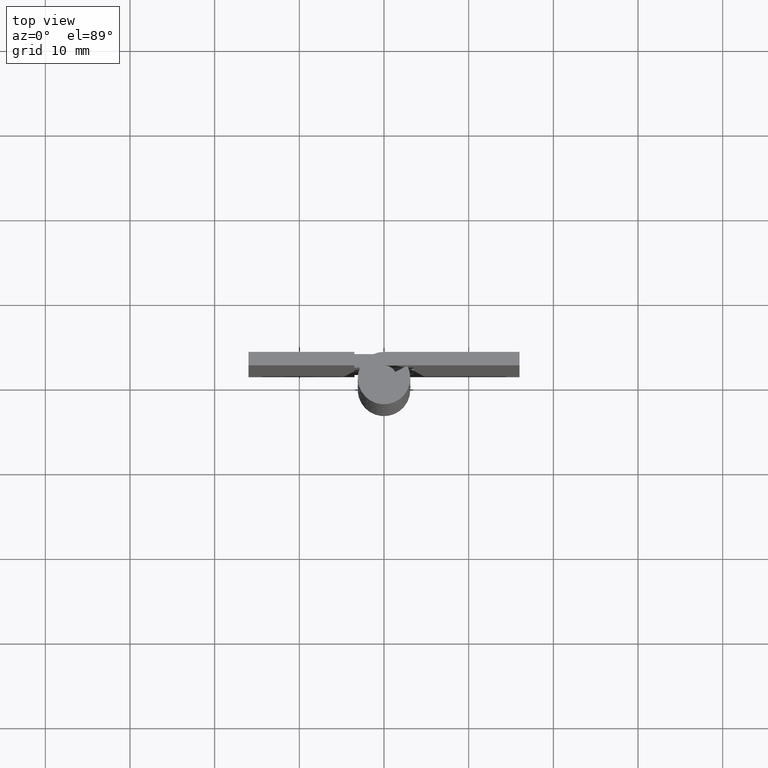
[diagram: clean part render]
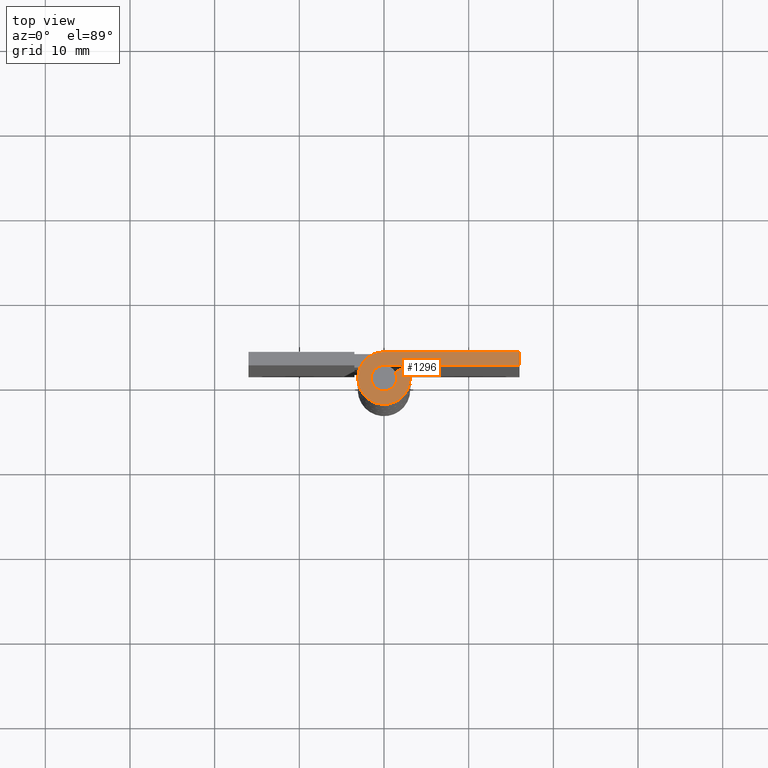
[diagram: same view with one face highlighted and labeled with its STEP entity id]
A machine part, top view. The second image highlights one B-rep face of the part: STEP entity #1296.
In plain terms, the highlighted face is a freeform B-spline surface patch.
Its self-contained STEP definition (entity closure, byte-faithful):
#1219=CARTESIAN_POINT('',(-4.053816169899054,-3.408860445423791,80.0));
#1220=CARTESIAN_POINT('',(16.954034590744921,-3.408860445423791,80.0));
#1221=CARTESIAN_POINT('',(-4.053816169899054,3.409648594709115,80.0));
#1222=CARTESIAN_POINT('',(16.954034590744921,3.409648594709115,80.0));
#1223=B_SPLINE_SURFACE_WITH_KNOTS('',1,1,((#1219,#1221),(#1220,#1222)),.UNSPECIFIED.,.F.,.F.,.U.,(2,2),(2,2),(0.0,21.007850760643979),(0.0,6.818509040132906),.UNSPECIFIED.);
#1224=CARTESIAN_POINT('',(2.739981751764050,1.450000000000000,80.0));
#1225=VERTEX_POINT('',#1224);
#1226=CARTESIAN_POINT('',(0.003521362805220,3.099998000000000,80.0));
#1227=VERTEX_POINT('',#1226);
#1228=CARTESIAN_POINT('',(2.739981751764050,1.450000000000002,80.0));
#1229=CARTESIAN_POINT('',(3.842352259281344,-0.633086258124314,80.0));
#1230=CARTESIAN_POINT('',(2.129955333572986,-2.252396562993291,80.0));
#1231=CARTESIAN_POINT('',(0.417558407864627,-3.871706867862268,80.0));
#1232=CARTESIAN_POINT('',(-1.600726611546711,-2.654745621540072,80.0));
#1233=CARTESIAN_POINT('',(-3.619011630958046,-1.437784375217877,80.0));
#1234=CARTESIAN_POINT('',(-2.986140433580759,0.832445380150624,80.0));
#1235=CARTESIAN_POINT('',(-2.353269236203469,3.102675135519129,80.0));
#1236=CARTESIAN_POINT('',(0.003521362805217,3.099997999999999,80.0));
#1244=(BOUNDED_CURVE()B_SPLINE_CURVE(2,(#1228,#1229,#1230,#1231,#1232,#1233,#1234,#1235,#1236),.UNSPECIFIED.,.F.,.U.)B_SPLINE_CURVE_WITH_KNOTS((3,2,2,2,3),(0.0,0.250000000000000,0.500000000000000,0.750000000000000,1.0),.UNSPECIFIED.)CURVE()GEOMETRIC_REPRESENTATION_ITEM()RATIONAL_B_SPLINE_CURVE((1.0,0.796064190964140,1.0,0.796064190964140,1.0,0.796064190964140,1.0,0.796064190964140,1.0))REPRESENTATION_ITEM(''));
#1245=EDGE_CURVE('',#1225,#1227,#1244,.T.);
#1246=ORIENTED_EDGE('',*,*,#1245,.F.);
#1247=CARTESIAN_POINT('',(1.325797621821316,0.701612903225806,80.0));
#1248=VERTEX_POINT('',#1247);
#1249=CARTESIAN_POINT('',(1.325797621821316,0.701612903225806,80.0));
#1250=CARTESIAN_POINT('',(2.739981751764050,1.450000000000000,80.0));
#1251=QUASI_UNIFORM_CURVE('',1,(#1249,#1250),.UNSPECIFIED.,.F.,.U.);
#1252=EDGE_CURVE('',#1248,#1225,#1251,.T.);
#1253=ORIENTED_EDGE('',*,*,#1252,.F.);
#1254=CARTESIAN_POINT('',(0.0,1.500000000000000,80.0));
#1255=VERTEX_POINT('',#1254);
#1256=CARTESIAN_POINT('',(1.325797621821315,0.701612903225806,80.0));
#1257=CARTESIAN_POINT('',(1.859045520162959,-0.306035035134632,79.999999999999986));
#1258=CARTESIAN_POINT('',(1.030933009042893,-1.089576583295441,80.0));
#1259=CARTESIAN_POINT('',(0.202820497922826,-1.873118131456252,79.999999999999986));
#1260=CARTESIAN_POINT('',(-0.773815431857395,-1.284994037892532,80.0));
#1261=CARTESIAN_POINT('',(-1.750451361637613,-0.696869944328814,79.999999999999986));
#1262=CARTESIAN_POINT('',(-1.445249296287461,0.401565027835592,80.0));
#1263=CARTESIAN_POINT('',(-1.140047230937308,1.500000000000000,79.999999999999986));
#1264=CARTESIAN_POINT('',(0.0,1.500000000000000,80.0));
#1272=(BOUNDED_CURVE()B_SPLINE_CURVE(2,(#1256,#1257,#1258,#1259,#1260,#1261,#1262,#1263,#1264),.UNSPECIFIED.,.F.,.U.)B_SPLINE_CURVE_WITH_KNOTS((3,2,2,2,3),(0.0,0.250000000000000,0.500000000000000,0.750000000000000,1.0),.UNSPECIFIED.)CURVE()GEOMETRIC_REPRESENTATION_ITEM()RATIONAL_B_SPLINE_CURVE((1.0,0.796150117301085,1.0,0.796150117301085,1.0,0.796150117301085,1.0,0.796150117301085,1.0))REPRESENTATION_ITEM(''));
#1273=EDGE_CURVE('',#1248,#1255,#1272,.T.);
#1274=ORIENTED_EDGE('',*,*,#1273,.T.);
#1275=CARTESIAN_POINT('',(16.0,1.500000000000000,80.0));
#1276=VERTEX_POINT('',#1275);
#1277=CARTESIAN_POINT('',(16.0,1.500000000000000,80.0));
#1278=CARTESIAN_POINT('',(0.0,1.500000000000000,80.0));
#1279=QUASI_UNIFORM_CURVE('',1,(#1277,#1278),.UNSPECIFIED.,.F.,.U.);
#1280=EDGE_CURVE('',#1276,#1255,#1279,.T.);
#1281=ORIENTED_EDGE('',*,*,#1280,.F.);
#1282=CARTESIAN_POINT('',(16.0,3.099998000000000,80.0));
#1283=VERTEX_POINT('',#1282);
#1284=CARTESIAN_POINT('',(16.0,3.099998000000000,80.0));
#1285=CARTESIAN_POINT('',(16.0,1.500000000000000,80.0));
#1286=QUASI_UNIFORM_CURVE('',1,(#1284,#1285),.UNSPECIFIED.,.F.,.U.);
#1287=EDGE_CURVE('',#1283,#1276,#1286,.T.);
#1288=ORIENTED_EDGE('',*,*,#1287,.F.);
#1289=CARTESIAN_POINT('',(0.003521362805220,3.099998000000000,80.0));
#1290=CARTESIAN_POINT('',(16.0,3.099998000000000,80.0));
#1291=QUASI_UNIFORM_CURVE('',1,(#1289,#1290),.UNSPECIFIED.,.F.,.U.);
#1292=EDGE_CURVE('',#1227,#1283,#1291,.T.);
#1293=ORIENTED_EDGE('',*,*,#1292,.F.);
#1294=EDGE_LOOP('',(#1246,#1253,#1274,#1281,#1288,#1293));
#1295=FACE_OUTER_BOUND('',#1294,.T.);
#1296=ADVANCED_FACE('',(#1295),#1223,.T.);